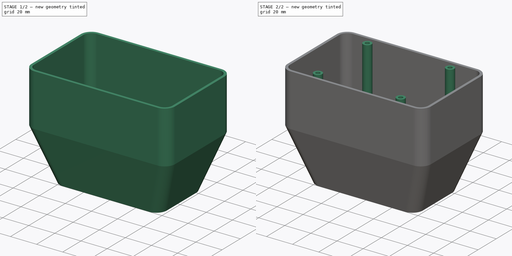
[diagram: build sequence overview — one tinted view per stage of 2, left to right]
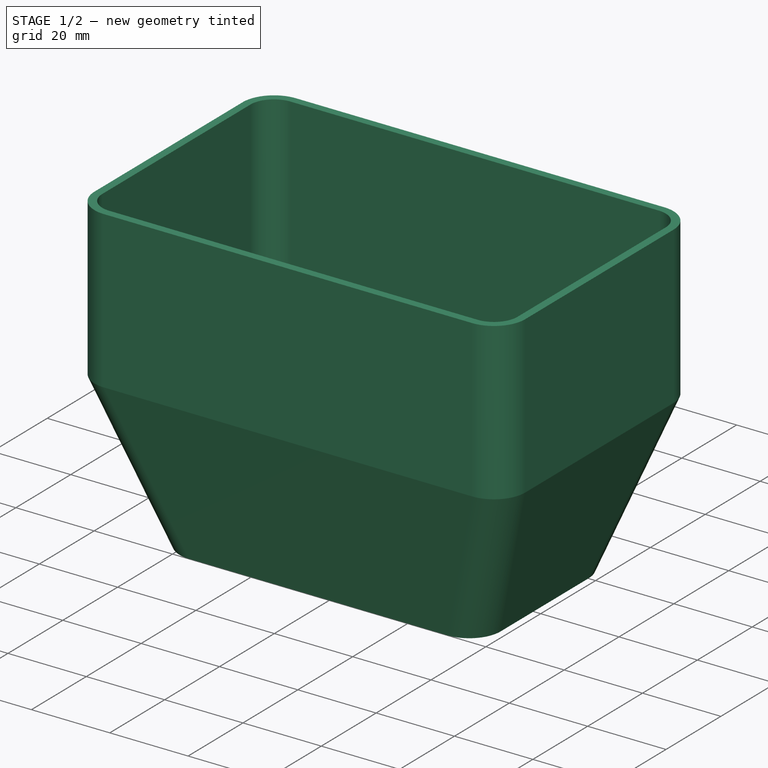
[diagram: stage 1 of 2 — iso view after this stage's code; geometry added in this stage tinted green]
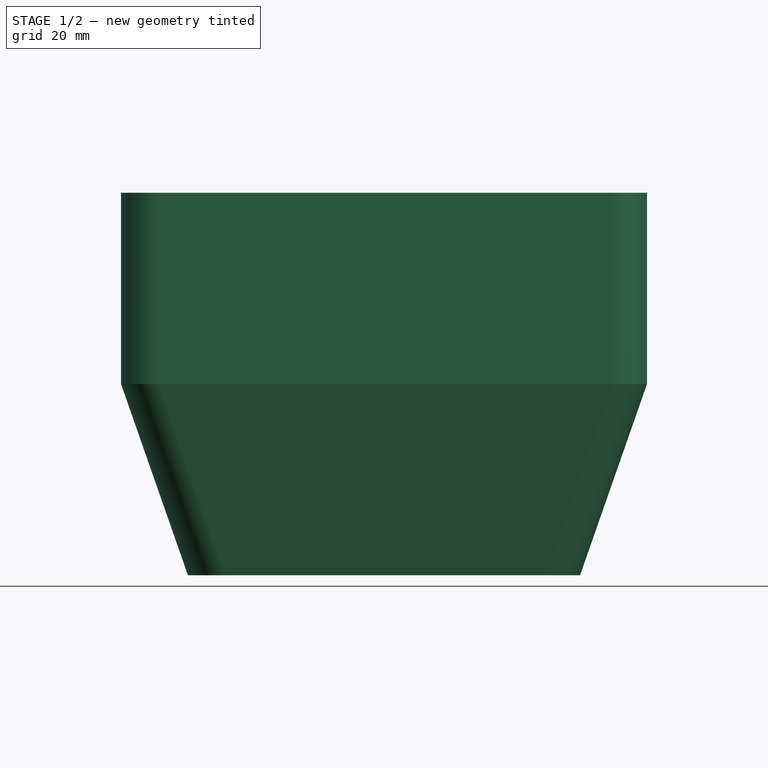
[diagram: stage 1 of 2 — front view after this stage's code; geometry added in this stage tinted green]
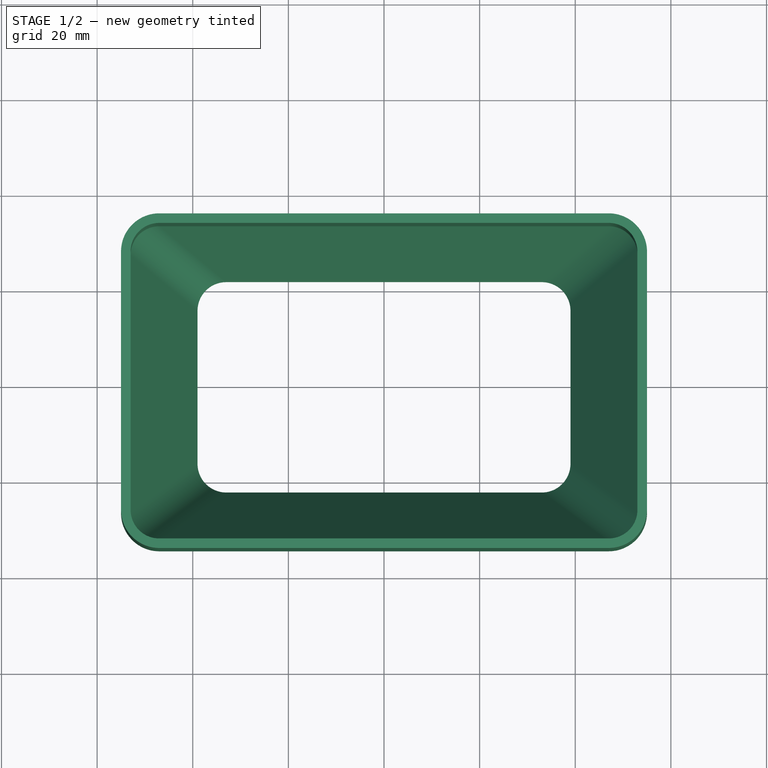
[diagram: stage 1 of 2 — top view after this stage's code; geometry added in this stage tinted green]
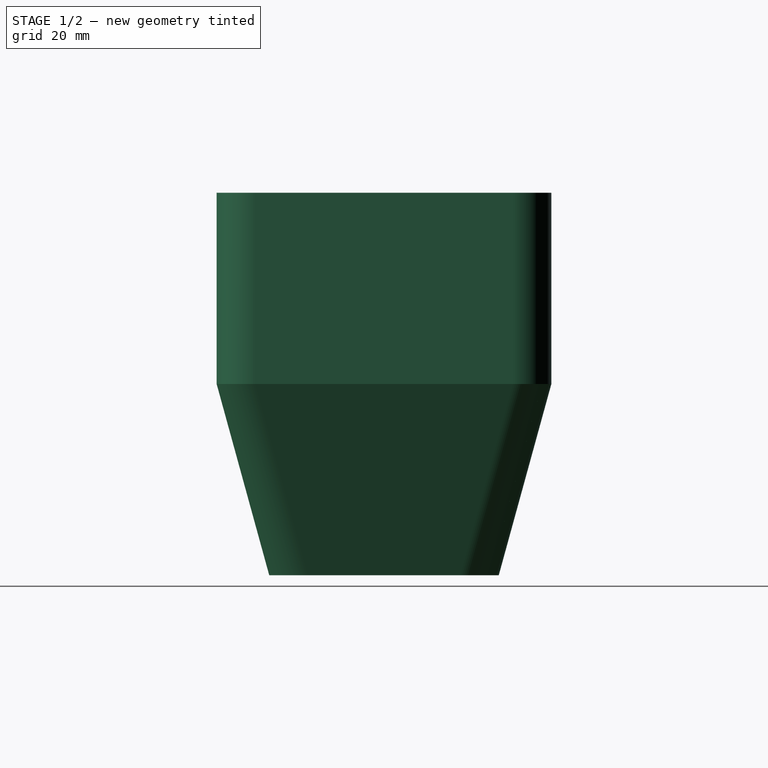
[diagram: stage 1 of 2 — right view after this stage's code; geometry added in this stage tinted green]
FCSTD DOCUMENT  (FreeCAD 0.19R)
Label: Example-2
License: All rights reserved
LicenseURL: http://en.wikipedia.org/wiki/All_rights_reserved
objects: Sketcher::SketchObject×3, PartDesign::Pad×2, PartDesign::Mirrored×2, PartDesign::AdditiveLoft×1, PartDesign::ShapeBinder×1, PartDesign::MultiTransform×1, PartDesign::Body×1
note: 14 computed .brp shape members not serialized (recipe doc carries the construction recipe); baked Part::Feature solids carry a one-line shape summary decoded from their .brp

FEATURE [Sketcher::SketchObject] Sketch
  FullyConstrained = true
  MapMode = 5
  Support = -> [XY_Plane]
  expr: Constraints[10] = .Constraints.wid_outer - 4mm
  expr: Constraints[8] = .Constraints.len_outer - 4mm
  sketch-geometry (24):
    g0: LineSegment StartX=-33 StartY=22 StartZ=0 EndX=33 EndY=22 EndZ=0
    g1: LineSegment StartX=39 StartY=16 StartZ=0 EndX=39 EndY=-16 EndZ=0
    g2: LineSegment StartX=33 StartY=-22 StartZ=0 EndX=-33 EndY=-22 EndZ=0
    g3: LineSegment StartX=-39 StartY=-16 StartZ=0 EndX=-39 EndY=16 EndZ=0
    g4: LineSegment StartX=-33 StartY=24 StartZ=0 EndX=33 EndY=24 EndZ=0
    g5: LineSegment StartX=41 StartY=16 StartZ=0 EndX=41 EndY=-16 EndZ=0
    g6: LineSegment StartX=33 StartY=-24 StartZ=0 EndX=-33 EndY=-24 EndZ=0
    g7: LineSegment StartX=-41 StartY=-16 StartZ=0 EndX=-41 EndY=16 EndZ=0
    g8: ArcOfCircle CenterX=33 CenterY=16 CenterZ=0 NormalX=0 NormalY=0 NormalZ=1 AngleXU=0 Radius=6 StartAngle=0 EndAngle=1.5708
    g9: GeomPoint X=39 Y=22 Z=0
    g10: ArcOfCircle CenterX=33 CenterY=16 CenterZ=0 NormalX=0 NormalY=0 NormalZ=1 AngleXU=0 Radius=8 StartAngle=0 EndAngle=1.5708
    g11: GeomPoint X=41 Y=24 Z=0
    g12: ArcOfCircle CenterX=-33 CenterY=-16 CenterZ=0 NormalX=0 NormalY=0 NormalZ=1 AngleXU=0 Radius=6 StartAngle=3.14159 EndAngle=4.71239
    g13: GeomPoint X=-39 Y=-22 Z=0
    g14: ArcOfCircle CenterX=-33 CenterY=-16 CenterZ=0 NormalX=0 NormalY=0 NormalZ=1 AngleXU=0 Radius=8 StartAngle=3.14159 EndAngle=4.71239
    g15: GeomPoint X=-41 Y=-24 Z=0
    g16: ArcOfCircle CenterX=-33 CenterY=16 CenterZ=0 NormalX=0 NormalY=0 NormalZ=1 AngleXU=0 Radius=6 StartAngle=1.5708 EndAngle=3.14159
    g17: GeomPoint X=-39 Y=22 Z=0
    g18: ArcOfCircle CenterX=-33 CenterY=16 CenterZ=0 NormalX=0 NormalY=0 NormalZ=1 AngleXU=0 Radius=8 StartAngle=1.5708 EndAngle=3.14159
    g19: GeomPoint X=-41 Y=24 Z=0
    g20: ArcOfCircle CenterX=33 CenterY=-16 CenterZ=0 NormalX=0 NormalY=0 NormalZ=1 AngleXU=0 Radius=6 StartAngle=4.71239 EndAngle=6.28319
    g21: GeomPoint X=39 Y=-22 Z=0
    g22: ArcOfCircle CenterX=33 CenterY=-16 CenterZ=0 NormalX=0 NormalY=0 NormalZ=1 AngleXU=0 Radius=8 StartAngle=4.71239 EndAngle=6.28319
    g23: GeomPoint X=41 Y=-24 Z=0
  constraints (50):
    c: Horizontal(g0)
    c: Horizontal(g2)
    c: Vertical(g1)
    c: Vertical(g3)
    c: Horizontal(g4)
    c: Horizontal(g6)
    c: Vertical(g5)
    c: DistanceX(g19,g11) = 82  'len_outer'
    c: DistanceX(g17,g9) = 78
    c: DistanceY(g23,g11) = 48  'wid_outer'
    c: DistanceY(g21,g9) = 44
    c: Symmetric(g13,g9,g-1)
    c: Symmetric(g15,g11,g-1)
    c: PointOnObject(g9,g0)
    c: PointOnObject(g9,g1)
    c: Tangent(g0,g8) = 1.5708
    c: Tangent(g1,g8) = 1.5708
    c: PointOnObject(g11,g4)
    c: PointOnObject(g11,g5)
    c: Tangent(g4,g10) = 1.5708
    c: Tangent(g5,g10) = 1.5708
    c: PointOnObject(g13,g2)
    c: PointOnObject(g13,g3)
    c: Tangent(g2,g12) = 1.5708
    c: Tangent(g3,g12) = 1.5708
    c: Tangent(g6,g14) = 1.5708
    c: Tangent(g7,g14) = 1.5708
    c: PointOnObject(g17,g0)
    c: PointOnObject(g17,g3)
    c: Tangent(g0,g16) = 1.5708
    c: Tangent(g3,g16) = 1.5708
    c: PointOnObject(g19,g4)
    c: PointOnObject(g19,g7)
    c: Tangent(g4,g18) = 1.5708
    c: Tangent(g7,g18) = 1.5708
    c: PointOnObject(g21,g1)
    c: PointOnObject(g21,g2)
    c: Tangent(g1,g20) = 1.5708
    c: Tangent(g2,g20) = 1.5708
    c: PointOnObject(g23,g5)
    c: Tangent(g5,g22) = 1.5708
    c: Tangent(g6,g22) = 1.5708
    c: Coincident(g16,g18)
    c: Coincident(g12,g14)
    c: Coincident(g20,g22)
    c: Coincident(g8,g10)
    c: Equal(g16,g12)
    c: Equal(g12,g20)
    c: Equal(g20,g8)
    c: Radius(g8) = 6
FEATURE [Sketcher::SketchObject] Sketch001
  AttachmentOffset = pos=(0,0,40) rot=(0,0,1;0rad)
  FullyConstrained = true
  MapMode = 5
  Placement = pos=(0,0,40) rot=(0,0,1;0rad)
  Support = -> [XY_Plane]
  expr: Constraints[10] = .Constraints.up_outer_wid - 4mm
  expr: Constraints[8] = .Constraints.upp_outer_len - 4mm
  sketch-geometry (24):
    g0: LineSegment StartX=-47 StartY=33 StartZ=0 EndX=47 EndY=33 EndZ=0
    g1: LineSegment StartX=53 StartY=27 StartZ=0 EndX=53 EndY=-27 EndZ=0
    g2: LineSegment StartX=47 StartY=-33 StartZ=0 EndX=-47 EndY=-33 EndZ=0
    g3: LineSegment StartX=-53 StartY=-27 StartZ=0 EndX=-53 EndY=27 EndZ=0
    g4: LineSegment StartX=-47 StartY=35 StartZ=0 EndX=47 EndY=35 EndZ=0
    g5: LineSegment StartX=55 StartY=27 StartZ=0 EndX=55 EndY=-27 EndZ=0
    g6: LineSegment StartX=47 StartY=-35 StartZ=0 EndX=-47 EndY=-35 EndZ=0
    g7: LineSegment StartX=-55 StartY=-27 StartZ=0 EndX=-55 EndY=27 EndZ=0
    g8: ArcOfCircle CenterX=-47 CenterY=27 CenterZ=0 NormalX=0 NormalY=0 NormalZ=1 AngleXU=0 Radius=6 StartAngle=1.5708 EndAngle=3.14159
    g9: GeomPoint X=-53 Y=33 Z=0
    g10: ArcOfCircle CenterX=47 CenterY=27 CenterZ=0 NormalX=0 NormalY=0 NormalZ=1 AngleXU=0 Radius=6 StartAngle=1.31e-14 EndAngle=1.5708
    g11: GeomPoint X=53 Y=33 Z=0
    g12: ArcOfCircle CenterX=47 CenterY=-27 CenterZ=0 NormalX=0 NormalY=0 NormalZ=1 AngleXU=0 Radius=6 StartAngle=4.71239 EndAngle=6.28319
    g13: GeomPoint X=53 Y=-33 Z=0
    g14: ArcOfCircle CenterX=-47 CenterY=-27 CenterZ=0 NormalX=0 NormalY=0 NormalZ=1 AngleXU=0 Radius=6 StartAngle=3.14159 EndAngle=4.71239
    g15: GeomPoint X=-53 Y=-33 Z=0
    g16: ArcOfCircle CenterX=-47 CenterY=27 CenterZ=0 NormalX=0 NormalY=0 NormalZ=1 AngleXU=0 Radius=8 StartAngle=1.5708 EndAngle=3.14159
    g17: GeomPoint X=-55 Y=35 Z=0
    g18: ArcOfCircle CenterX=47 CenterY=27 CenterZ=0 NormalX=0 NormalY=0 NormalZ=1 AngleXU=0 Radius=8 StartAngle=1.6e-15 EndAngle=1.5708
    g19: GeomPoint X=55 Y=35 Z=0
    g20: ArcOfCircle CenterX=47 CenterY=-27 CenterZ=0 NormalX=0 NormalY=0 NormalZ=1 AngleXU=0 Radius=8 StartAngle=4.71239 EndAngle=6.28319
    g21: GeomPoint X=55 Y=-35 Z=0
    g22: ArcOfCircle CenterX=-47 CenterY=-27 CenterZ=0 NormalX=0 NormalY=0 NormalZ=1 AngleXU=0 Radius=8 StartAngle=3.14159 EndAngle=4.71239
    g23: GeomPoint X=-55 Y=-35 Z=0
  constraints (51):
    c: Horizontal(g0)
    c: Horizontal(g2)
    c: Vertical(g1)
    c: Vertical(g3)
    c: Horizontal(g4)
    c: Horizontal(g6)
    c: Vertical(g5)
    c: DistanceX(g17,g19) = 110  'upp_outer_len'
    c: DistanceX(g9,g11) = 106
    c: DistanceY(g21,g19) = 70  'up_outer_wid'
    c: DistanceY(g13,g11) = 66
    c: PointOnObject(g9,g0)
    c: PointOnObject(g9,g3)
    c: Tangent(g0,g8) = 1.5708
    c: Tangent(g3,g8) = 1.5708
    c: PointOnObject(g11,g0)
    c: PointOnObject(g11,g1)
    c: Tangent(g0,g10) = 1.5708
    c: Tangent(g1,g10) = 1.5708
    c: PointOnObject(g13,g1)
    c: PointOnObject(g13,g2)
    c: Tangent(g1,g12) = 1.5708
    c: Tangent(g2,g12) = 1.5708
    c: PointOnObject(g15,g2)
    c: PointOnObject(g15,g3)
    c: Tangent(g2,g14) = 1.5708
    c: Tangent(g3,g14) = 1.5708
    c: PointOnObject(g17,g4)
    c: PointOnObject(g17,g7)
    c: Tangent(g4,g16) = 1.5708
    c: Tangent(g7,g16) = 1.5708
    c: PointOnObject(g19,g4)
    c: PointOnObject(g19,g5)
    c: Tangent(g4,g18) = 1.5708
    c: Tangent(g5,g18) = 1.5708
    c: PointOnObject(g21,g5)
    c: Tangent(g5,g20) = 1.5708
    c: Tangent(g6,g20) = 1.5708
    c: PointOnObject(g23,g6)
    c: PointOnObject(g23,g7)
    c: Tangent(g6,g22) = 1.5708
    c: Tangent(g7,g22) = 1.5708
    c: Coincident(g8,g16)
    c: Coincident(g18,g10)
    c: Coincident(g12,g20)
    c: Coincident(g14,g22)
    c: Symmetric(g11,g15,g-1)
    c: Equal(g14,g8)
    c: Equal(g8,g10)
    c: Equal(g10,g12)
    c: Radius(g10) = 6
FEATURE [PartDesign::AdditiveLoft] AdditiveLoft
  Closed = true
  Profile = -> Sketch
  Ruled = false
  Sections = -> [Sketch001]
FEATURE [Sketcher::SketchObject] Sketch003
  AttachmentOffset = pos=(0,0,80) rot=(0,0,1;0rad)
  FullyConstrained = false
  MapMode = 5
  Placement = pos=(0,0,80) rot=(0,0,1;0rad)
  Support = -> [XY_Plane]
  sketch-geometry (2):
    g0: Circle CenterX=-31.6812 CenterY=27.007 CenterZ=0 NormalX=0 NormalY=0 NormalZ=1 AngleXU=0 Radius=3.22206
    g1: Circle CenterX=-31.6812 CenterY=27.007 CenterZ=0 NormalX=0 NormalY=0 NormalZ=1 AngleXU=0 Radius=1.61352
  constraints (1):
    c: Coincident(g1,g0)
FEATURE [PartDesign::ShapeBinder] ShapeBinder
  Support = -> [AdditiveLoft]
  TraceSupport = false
FEATURE [PartDesign::Pad] Pad
  BaseFeature = -> AdditiveLoft
  Direction = (1,1,1)
  Length = 40
  Length2 = 100
  Profile = -> ShapeBinder
  Type = 0
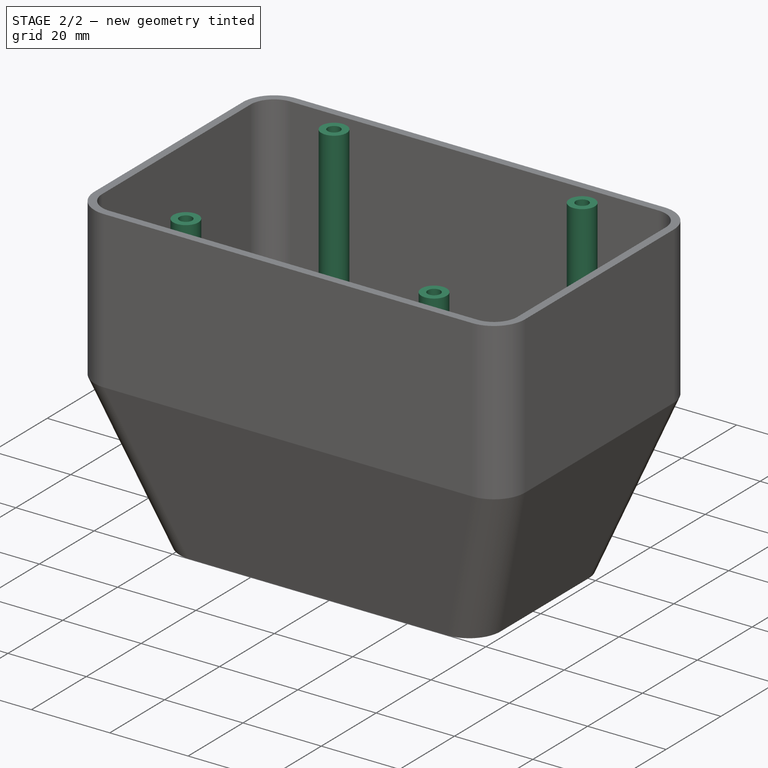
[diagram: stage 2 of 2 — iso view after this stage's code; geometry added in this stage tinted green]
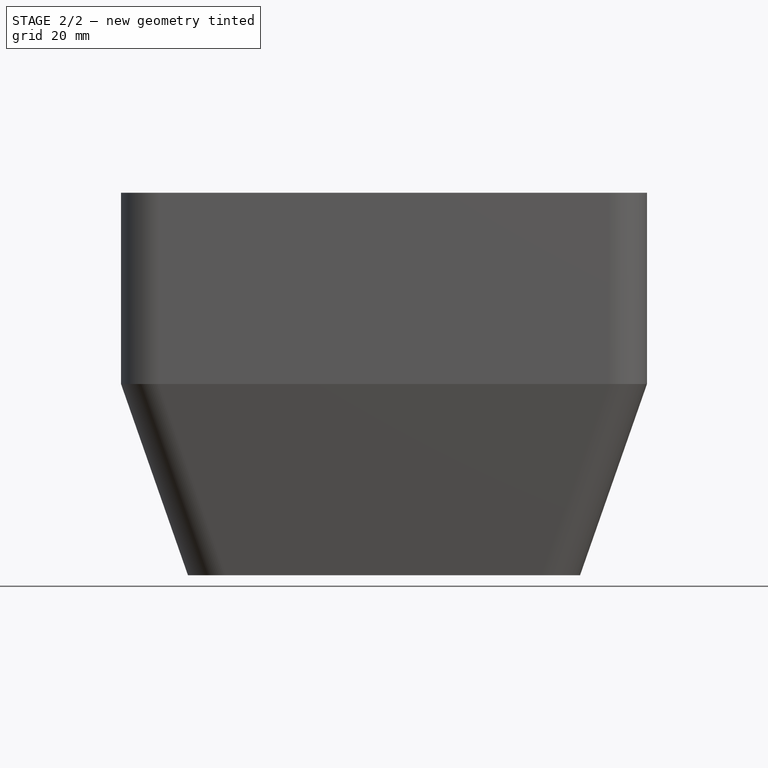
[diagram: stage 2 of 2 — front view after this stage's code; geometry added in this stage tinted green]
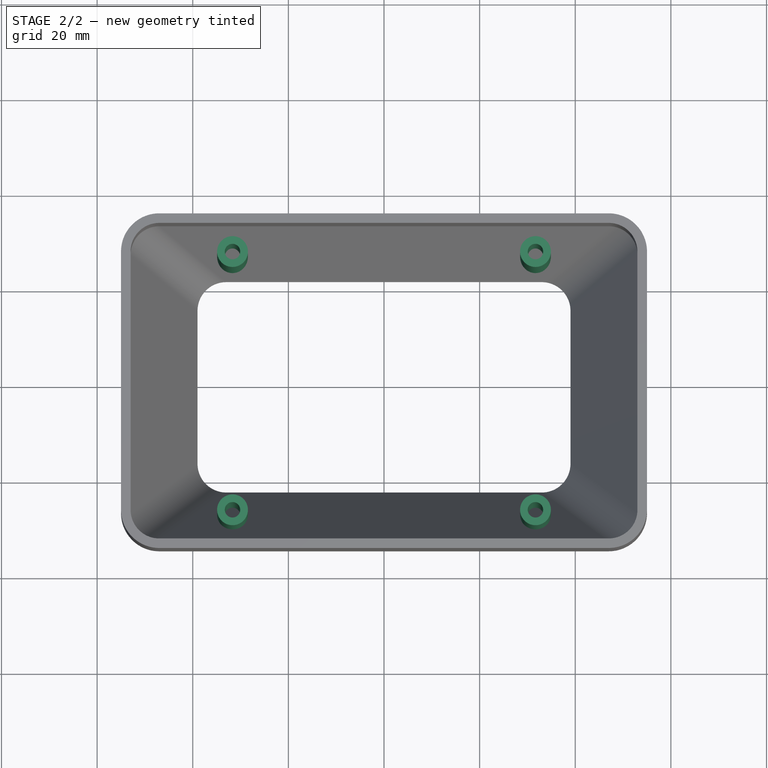
[diagram: stage 2 of 2 — top view after this stage's code; geometry added in this stage tinted green]
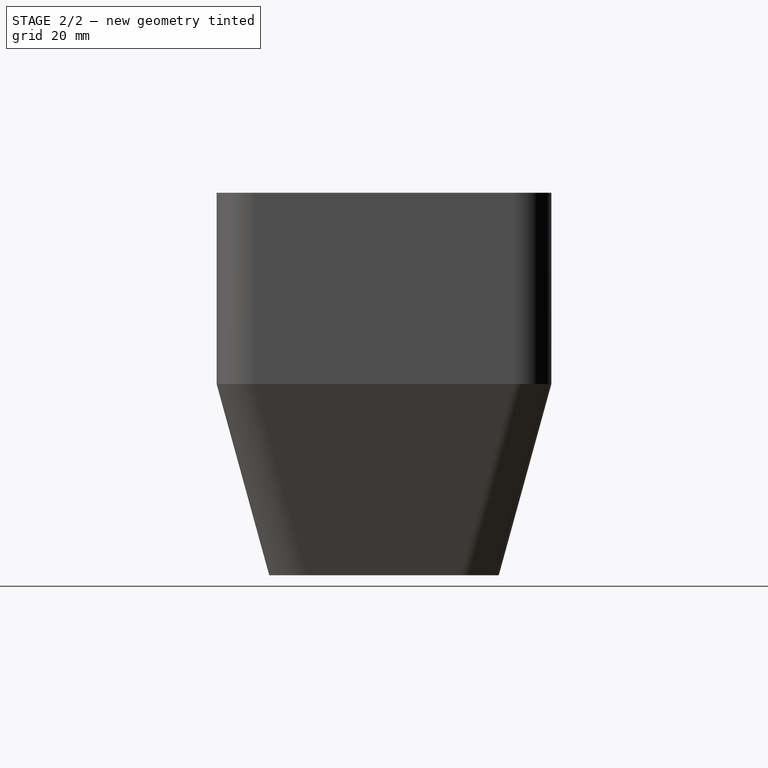
[diagram: stage 2 of 2 — right view after this stage's code; geometry added in this stage tinted green]
FEATURE [PartDesign::Pad] Pad001
  BaseFeature = -> Pad
  Direction = (1,1,1)
  Length = 10
  Length2 = 100
  Profile = -> Sketch003
  Type = 3
  UpToFace = -> Pad [Face17]
FEATURE [PartDesign::Mirrored] Mirrored
  MirrorPlane = -> Sketch003 [V_Axis]
FEATURE [PartDesign::Mirrored] Mirrored001
  MirrorPlane = -> XZ_Plane
FEATURE [PartDesign::MultiTransform] MultiTransform
  BaseFeature = -> Pad001
  Originals = -> [Pad001]
  Transformations = -> [Mirrored,Mirrored001]
FEATURE [PartDesign::Body] Body
  Group = -> [Sketch,Sketch001,AdditiveLoft,Sketch003,ShapeBinder,Pad,Pad001,MultiTransform,Mirrored,Mirrored001]
  Origin = -> Origin
  Tip = -> MultiTransform
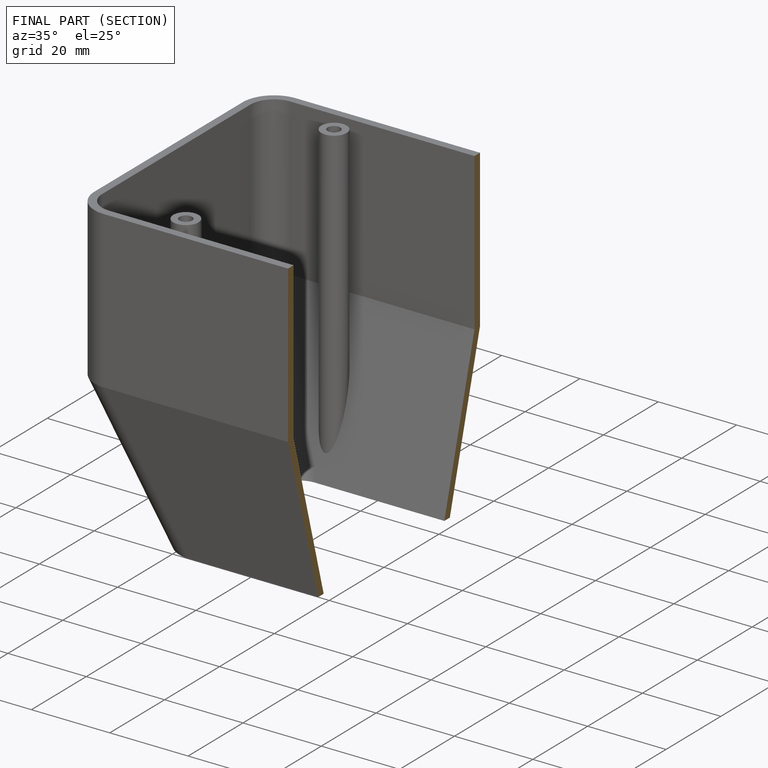
[diagram: finished part — half-section view (interior)]
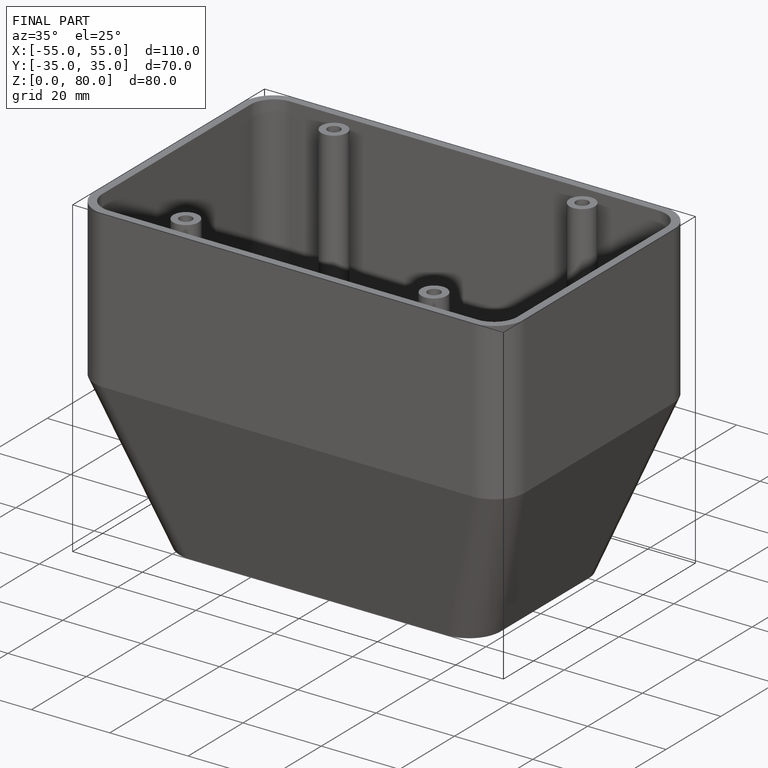
[diagram: finished part — iso view with bounding-box wireframe]
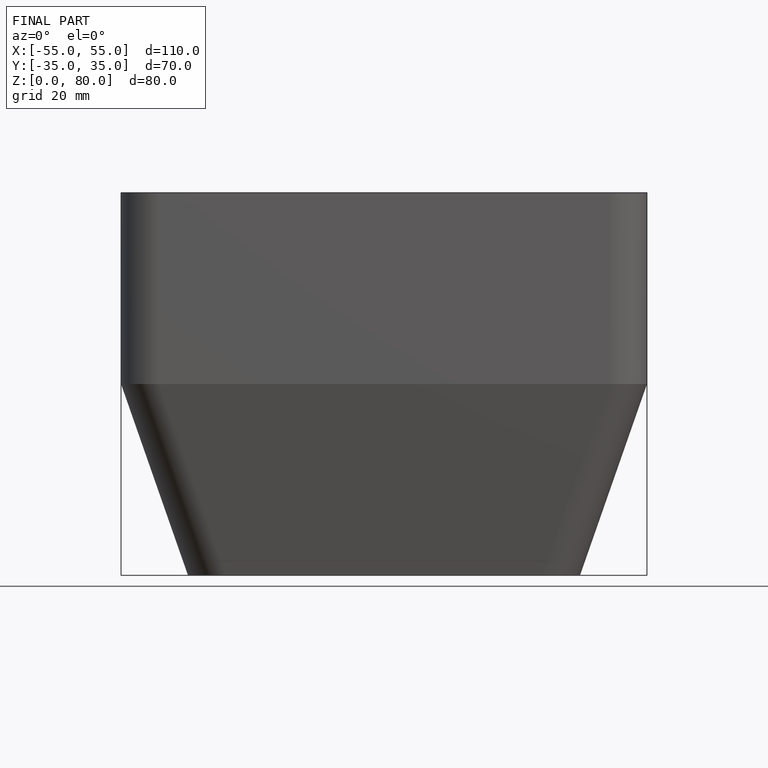
[diagram: finished part — front view with bounding-box wireframe]
